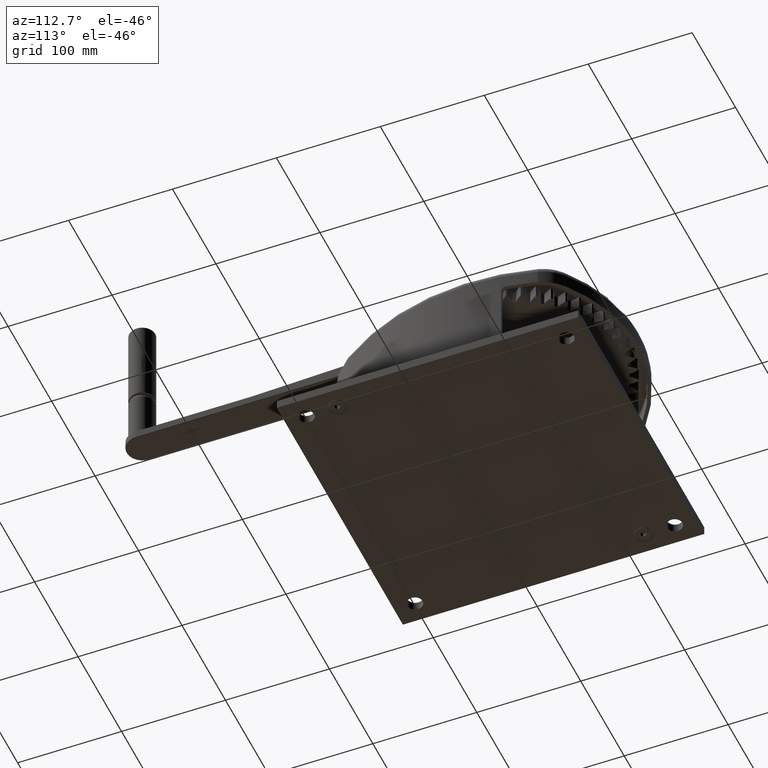
[diagram: clean part render]
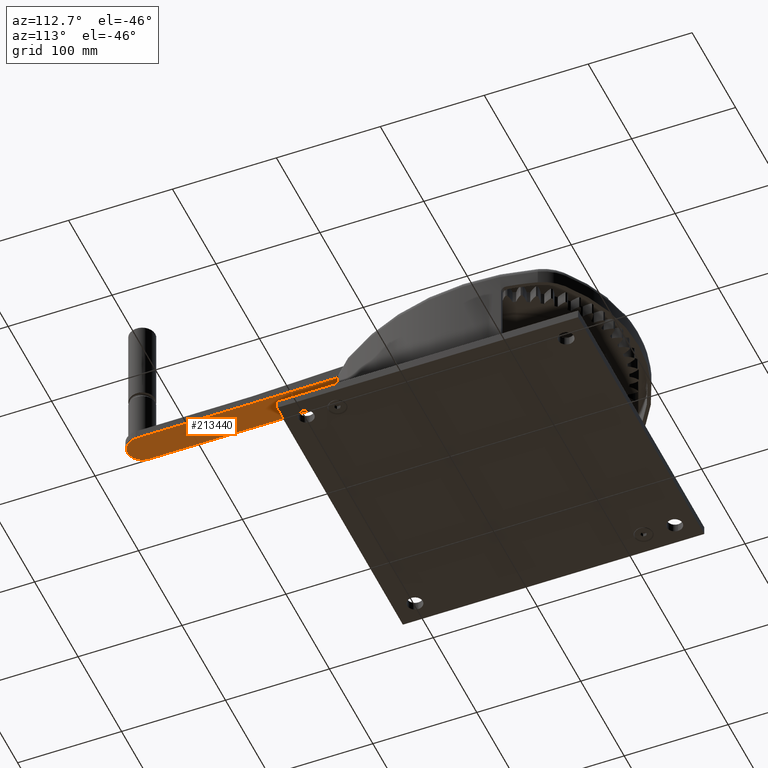
[diagram: same view with one face highlighted and labeled with its STEP entity id]
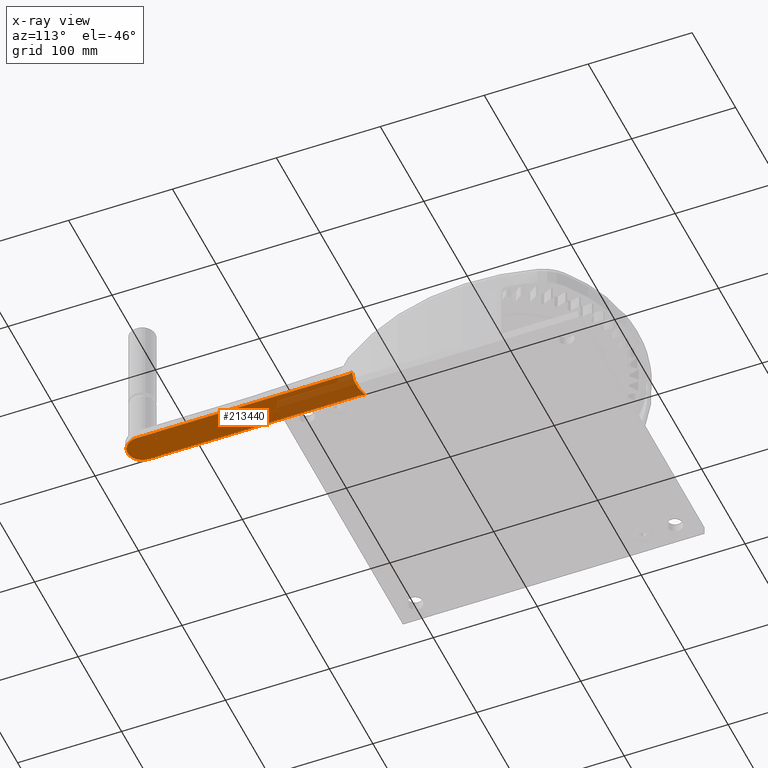
[diagram: x-ray of the same camera — body ghosted, the highlighted face saturated]
A machine part, auxiliary view. The second image highlights one B-rep face of the part: STEP entity #213440.
The next image is the same camera in x-ray: the body ghosted, the highlighted face saturated — about 29% of this face is hidden behind the body in this view.
In plain terms, the highlighted planar face has unit normal (-0, -0, 1).
Its self-contained STEP definition (entity closure, byte-faithful):
#179870=CARTESIAN_POINT('',(14.,-3.42901103761259E-15,
-1.50990331349021E-14));
#179880=VERTEX_POINT('',#179870);
#179930=CARTESIAN_POINT('',(0.,0.,-1.50990331349021E-14));
#179940=DIRECTION('',(0.,0.,1.));
#179950=DIRECTION('',(1.,0.,0.));
#179960=AXIS2_PLACEMENT_3D('',#179930,#179940,#179950);
#179970=CIRCLE('',#179960,14.);
#179980=CARTESIAN_POINT('',(-14.,1.71450551880629E-15,
-1.50990331349021E-14));
#179990=VERTEX_POINT('',#179980);
#180000=EDGE_CURVE('',#179990,#179880,#179970,.T.);
#207780=CARTESIAN_POINT('',(15.1509077064036,208.158632961242,
-1.50990331349021E-14));
#207790=VERTEX_POINT('',#207780);
#211940=CARTESIAN_POINT('',(-14.,204.146188254718,-1.50990331349021E-14)
);
#211950=VERTEX_POINT('',#211940);
#212570=CARTESIAN_POINT('',(0.,95.,-1.50990331349021E-14));
#212580=DIRECTION('',(0.,-0.,1.));
#212590=DIRECTION('',(0.,1.,0.));
#212600=AXIS2_PLACEMENT_3D('',#212570,#212580,#212590);
#212610=PLANE('',#212600);
#212620=CARTESIAN_POINT('',(-14.,0.,-1.50990331349021E-14));
#212630=DIRECTION('',(1.26318708579573E-16,-1.,0.));
#212640=VECTOR('',#212630,1.);
#212650=LINE('',#212620,#212640);
#212660=EDGE_CURVE('',#211950,#179990,#212650,.T.);
#212670=ORIENTED_EDGE('',*,*,#212660,.F.);
#212680=ORIENTED_EDGE('',*,*,#180000,.F.);
#212690=CARTESIAN_POINT('',(14.,0.,-1.50990331349021E-14));
#212700=DIRECTION('',(-1.26318708579573E-16,-1.,0.));
#212710=VECTOR('',#212700,1.);
#212720=LINE('',#212690,#212710);
#212730=CARTESIAN_POINT('',(14.,204.146188254718,-1.50990331349021E-14))
;
#212740=VERTEX_POINT('',#212730);
#212750=EDGE_CURVE('',#212740,#179880,#212720,.T.);
#212760=ORIENTED_EDGE('',*,*,#212750,.T.);
#212770=CARTESIAN_POINT('',(13.7242834632065,203.184949267089,
-1.50990331349021E-14));
#212780=CARTESIAN_POINT('',(14.0080069265383,204.174103047386,
-1.50990331349021E-14));
#212790=CARTESIAN_POINT('',(14.29173038987,205.163256827683,
-1.50990331349021E-14));
#212800=CARTESIAN_POINT('',(14.7542744020789,206.775838151968,
-1.50990331349021E-14));
#212810=CARTESIAN_POINT('',(14.9330949509561,207.399265695955,
-1.50990331349021E-14));
#212820=CARTESIAN_POINT('',(15.1249129020233,208.068006480376,
-1.50990331349021E-14));
#212830=CARTESIAN_POINT('',(15.1379103042135,208.113319720809,
-1.50990331349021E-14));
#212840=CARTESIAN_POINT('',(15.1509077064036,208.158632961242,
-1.50990331349021E-14));
#212850=B_SPLINE_CURVE_WITH_KNOTS('',3,(#212770,#212780,#212790,#212800,
#212810,#212820,#212830,#212840),.UNSPECIFIED.,.F.,.F.,(4,2,2,4),(
211.378181578134,214.465302865432,216.411002796493,216.55242415273),
.UNSPECIFIED.);
#212860=EDGE_CURVE('',#212740,#207790,#212850,.T.);
#212870=ORIENTED_EDGE('',*,*,#212860,.F.);
#212880=CARTESIAN_POINT('',(1.77635683940025E-15,250.,
-1.77635683940025E-14));
#212890=DIRECTION('',(0.,0.,1.));
#212900=DIRECTION('',(-3.99181312224772E-17,-1.,0.));
#212910=AXIS2_PLACEMENT_3D('',#212880,#212890,#212900);
#212920=CIRCLE('',#212910,44.5000000000004);
#212930=CARTESIAN_POINT('',(-15.1509077064036,208.158632961242,
-1.77635683940025E-14));
#212940=VERTEX_POINT('',#212930);
#212950=EDGE_CURVE('',#212940,#207790,#212920,.T.);
#212960=ORIENTED_EDGE('',*,*,#212950,.T.);
#212970=CARTESIAN_POINT('',(-13.724283463179,203.184949266993,
-1.50990331349016E-14));
#212980=CARTESIAN_POINT('',(-13.8550637545936,203.640892593364,
-1.50990331349016E-14));
#212990=CARTESIAN_POINT('',(-13.9858440460082,204.096835919736,
-1.50990331349016E-14));
#213000=CARTESIAN_POINT('',(-14.1218152257596,204.57087639874,
-1.50990331349016E-14));
#213010=CARTESIAN_POINT('',(-14.1270061140965,204.588973551373,
-1.50990331349016E-14));
#213020=CARTESIAN_POINT('',(-14.1373878907701,204.625167856639,
-1.50990331349016E-14));
#213030=CARTESIAN_POINT('',(-14.1425787791069,204.643265009272,
-1.50990331349017E-14));
#213040=CARTESIAN_POINT('',(-14.1529605557805,204.679459314537,
-1.50990331349017E-14));
#213050=CARTESIAN_POINT('',(-14.1581514441173,204.69755646717,
-1.50990331349017E-14));
#213060=CARTESIAN_POINT('',(-14.1789149974645,204.769945077702,
-1.50990331349016E-14));
#213070=CARTESIAN_POINT('',(-14.2100603274853,204.878527993499,
-1.50990331349016E-14));
#213080=CARTESIAN_POINT('',(-14.2412056575062,204.987110909297,
-1.50990331349016E-14));
#213090=CARTESIAN_POINT('',(-14.2879236525374,205.149985282993,
-1.50990331349016E-14));
#213100=CARTESIAN_POINT('',(-14.3190689825582,205.25856819879,
-1.50990331349016E-14));
#213110=CARTESIAN_POINT('',(-14.3956244948521,205.5254660207,
-1.50990331349014E-14));
#213120=CARTESIAN_POINT('',(-14.441034677125,205.683780926813,
-1.50990331349013E-14));
#213130=CARTESIAN_POINT('',(-14.531855041671,206.000410739038,
-1.50990331349014E-14));
#213140=CARTESIAN_POINT('',(-14.577265223944,206.15872564515,
-1.50990331349016E-14));
#213150=CARTESIAN_POINT('',(-14.6356728084071,206.362353791696,
-1.50990331349016E-14));
#213160=CARTESIAN_POINT('',(-14.6486702105972,206.407667032129,
-1.50990331349016E-14));
#213170=CARTESIAN_POINT('',(-14.6747054010133,206.498434312065,
-1.50990331349017E-14));
#213180=CARTESIAN_POINT('',(-14.6877431892392,206.543888351569,
-1.50990331349018E-14));
#213190=CARTESIAN_POINT('',(-14.7027045959649,206.596048761031,
-1.50990331349018E-14));
#213200=CARTESIAN_POINT('',(-14.7046282144646,206.602755130989,
-1.50990331349017E-14));
#213210=CARTESIAN_POINT('',(-14.7398411374029,206.725519020273,
-1.50990331349016E-14));
#213220=CARTESIAN_POINT('',(-14.7731304418414,206.841576539598,
-1.50990331349016E-14));
#213230=CARTESIAN_POINT('',(-14.8397090507185,207.07369157825,
-1.50990331349015E-14));
#213240=CARTESIAN_POINT('',(-14.872998355157,207.189749097576,
-1.50990331349016E-14));
#213250=CARTESIAN_POINT('',(-14.931668719399,207.394293381295,
-1.50990331349016E-14));
#213260=CARTESIAN_POINT('',(-14.9824308390059,207.57126691008,
-1.50990331349017E-14));
#213270=CARTESIAN_POINT('',(-15.0331929586128,207.748240438866,
-1.50990331349017E-14));
#213280=CARTESIAN_POINT('',(-15.0624212554157,207.850139943174,
-1.50990331349017E-14));
#213290=CARTESIAN_POINT('',(-15.0662684924152,207.86355268309,
-1.50990331349017E-14));
#213300=CARTESIAN_POINT('',(-15.0739629664141,207.890378162922,
-1.50990331349017E-14));
#213310=CARTESIAN_POINT('',(-15.0778102034136,207.903790902838,
-1.50990331349017E-14));
#213320=CARTESIAN_POINT('',(-15.0855046774126,207.93061638267,
-1.50990331349017E-14));
#213330=CARTESIAN_POINT('',(-15.089351914412,207.944029122586,
-1.50990331349017E-14));
#213340=CARTESIAN_POINT('',(-15.0994379342187,207.979192321649,
-1.50990331349017E-14));
#213350=CARTESIAN_POINT('',(-15.105676717026,208.000942780796,
-1.50990331349017E-14));
#213360=CARTESIAN_POINT('',(-15.1249129020234,208.068006480376,
-1.50990331349017E-14));
#213370=CARTESIAN_POINT('',(-15.1379103042135,208.113319720809,
-1.50990331349018E-14));
#213380=CARTESIAN_POINT('',(-15.1509077064036,208.158632961242,
-1.50990331349018E-14));
#213390=(BOUNDED_CURVE() B_SPLINE_CURVE(3,(#212970,#212980,#212990,
#213000,#213010,#213020,#213030,#213040,#213050,#213060,#213070,#213080,
#213090,#213100,#213110,#213120,#213130,#213140,#213150,#213160,#213170,
#213180,#213190,#213200,#213210,#213220,#213230,#213240,#213250,#213260,
#213270,#213280,#213290,#213300,#213310,#213320,#213330,#213340,#213350,
#213360,#213370,#213380),.UNSPECIFIED.,.F.,.F.) 
B_SPLINE_CURVE_WITH_KNOTS((4,2,2,2,2,1,2,2,2,2,2,2,2,2,2,1,2,2,2,2,2,4),
(0.,1.42298637146206,1.47946707875485,1.5359477860477,1.59242849334044,
1.76187061521881,1.93131273709719,2.27019698085394,2.76429337566314,
3.25838977047233,3.39981112670966,3.54167191290966,3.5626023060095,
3.92481457835639,4.28702685070328,4.56319156790114,4.83935628509901,
4.88121707129872,4.92307785749838,4.96493864369805,5.03282121845902,
5.17424257469636),.UNSPECIFIED.) CURVE() GEOMETRIC_REPRESENTATION_ITEM()
 RATIONAL_B_SPLINE_CURVE((0.999999999999988,0.999999999999988,
0.999999999999988,0.999999999999988,0.999999999999988,0.999999999999988,
0.999999999999988,0.999999999999988,0.999999999999988,0.999999999999988,
0.999999999999988,0.999999999999988,0.999999999999988,0.999999999999988,
0.999999999999989,0.999999999999989,0.999999999999989,0.999999999999989,
0.999999999999989,0.999999999999989,0.999999999999989,0.999999999999989,
0.999999999999989,0.999999999999989,0.999999999999989,0.999999999999989,
0.999999999999989,0.999999999999989,0.999999999999989,0.999999999999988,
0.999999999999989,0.999999999999989,0.999999999999989,0.999999999999989,
0.999999999999989,0.999999999999989,0.999999999999989,0.999999999999989,
0.999999999999989,0.999999999999989,0.999999999999988,0.999999999999986)
) REPRESENTATION_ITEM(''));
#213400=EDGE_CURVE('',#211950,#212940,#213390,.T.);
#213410=ORIENTED_EDGE('',*,*,#213400,.T.);
#213420=EDGE_LOOP('',(#213410,#212960,#212870,#212760,#212680,#212670));
#213430=FACE_OUTER_BOUND('',#213420,.T.);
#213440=ADVANCED_FACE('',(#213430),#212610,.F.);